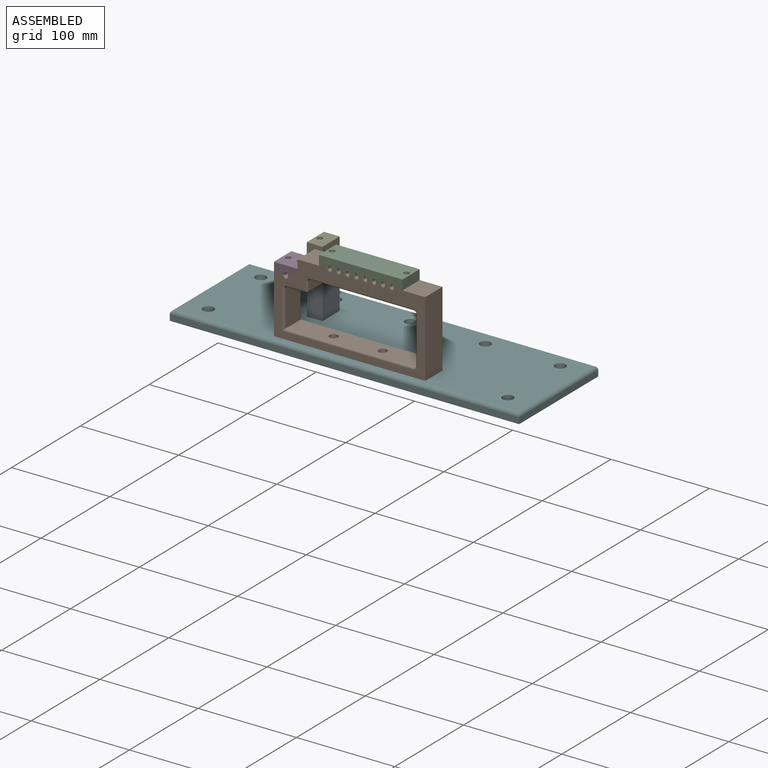
[diagram: assembled view]
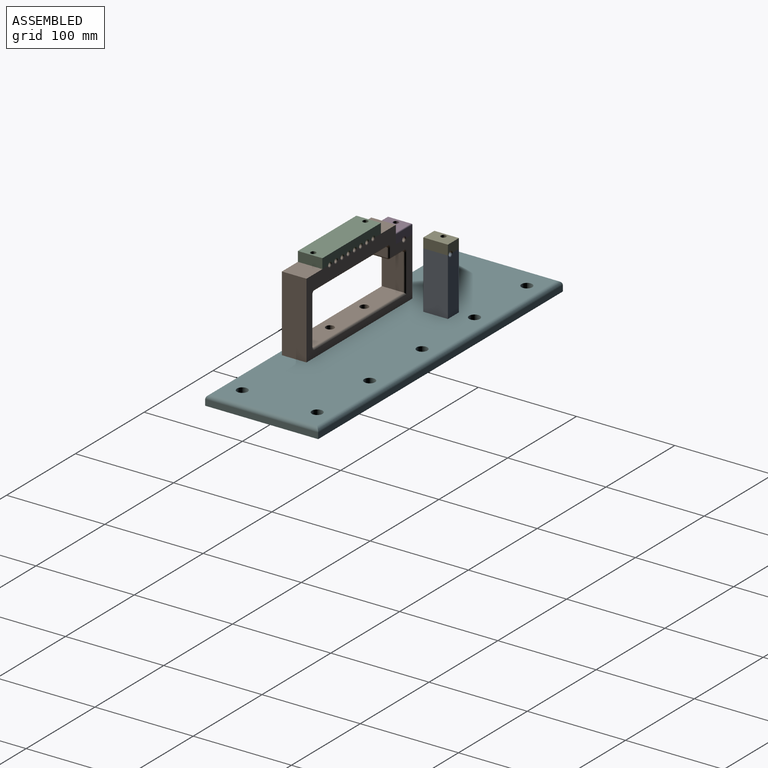
[diagram: assembled view, second angle]
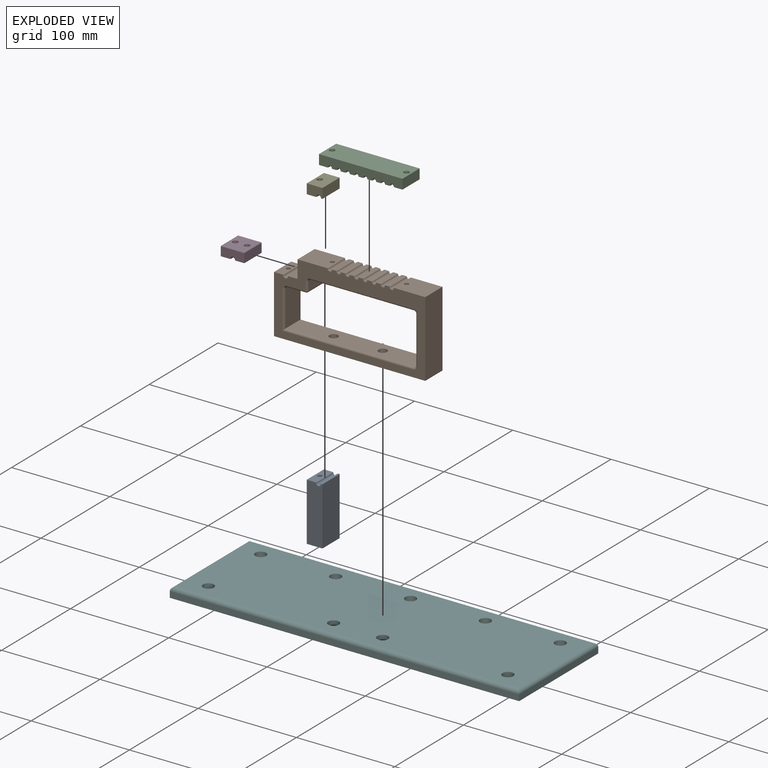
[diagram: exploded view]
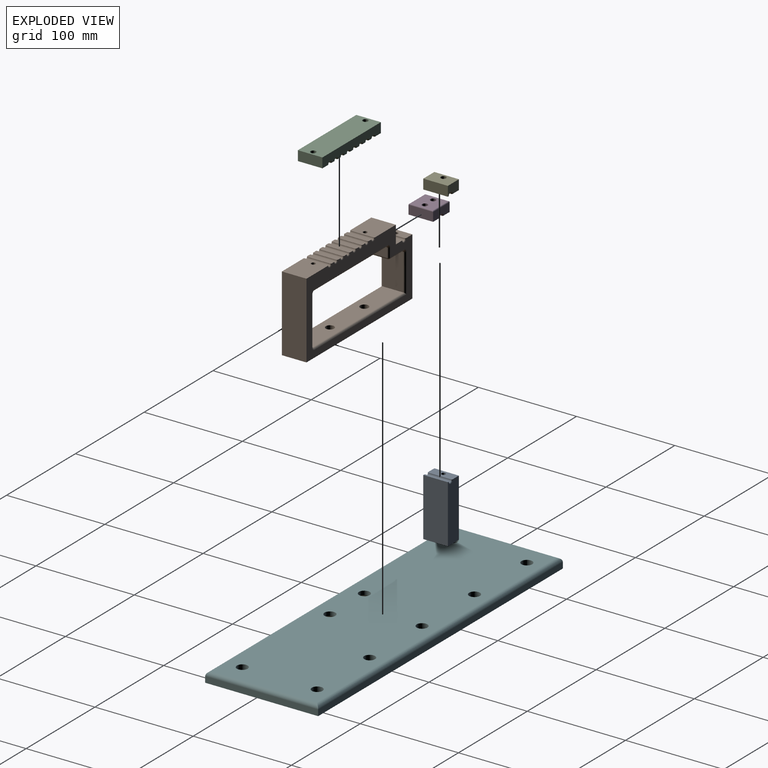
[diagram: exploded view, second angle]
ASSEMBLY  parts=6 mates=4
PART A: 14 faces, bbox 16.1x25x59 mm
  f0: plane 25x1.95mm, normal (0,0,1), area 48.3mm2, adj f1,f5,f6,f7,f8,f9
  f1: cylinder r=2.05mm len=23mm, axis (0,1,0), area 148.1mm2, adj f0,f2,f8,f9
  f2: plane 25x9.95mm, normal (0,0,1), area 234.5mm2, adj f1,f3,f6,f7,f8,f9,f11
  f3: plane 59x25mm, normal (-1,0,0), area 1475mm2, adj f2,f4,f6,f7
  f4: plane 25x16mm, normal (0,0,-1), area 343.3mm2, adj f3,f5,f6,f7,f13
  f5: plane 59x25mm, normal (1,0,0), area 1475mm2, adj f0,f4,f6,f7
  f6: plane 59x16mm, normal (0,-1,0), area 929.4mm2, adj f0,f2,f3,f4,f5,f9
  f7: plane 59x16mm, normal (0,1,0), area 929.4mm2, adj f0,f2,f3,f4,f5,f8
  f8: torus R=3.05mm, axis (0,-1,0), area 11.9mm2, adj f0,f1,f2,f7
  f9: torus R=3.05mm, axis (0,-1,0), area 11.9mm2, adj f0,f1,f2,f6
  f10: cone r=0mm half-angle=59deg, axis (0,0,1), area 16.2mm2, adj f11
  f11: cylinder r=2.1mm len=15mm, axis (0,0,1), area 197.9mm2, adj f2,f10
  f12: cone r=0mm half-angle=59deg, axis (0,0,-1), area 66.2mm2, adj f13
  f13: cylinder r=4.25mm len=17.1mm, axis (0,0,-1), area 456.6mm2, adj f4,f12
PART B: 86 faces, bbox 154x25x77 mm
  f0: plane 154x77mm, normal (0,-1,0), area 3935.1mm2, adj f2,f3,f4,f5,f6,f8,f10,f12
  f1: cylinder r=2.05mm len=23mm, axis (0,1,0), area 148.1mm2, adj f2,f30,f69,f78
  f2: plane 25x9.95mm, normal (0,0,1), area 234.5mm2, adj f0,f1,f3,f31,f69,f78,f81
  f3: plane 59x25mm, normal (-1,0,0), area 1475mm2, adj f0,f2,f4,f31
  f4: plane 154x25mm, normal (0,0,-1), area 3736.5mm2, adj f0,f3,f5,f31,f59,f60
  f5: plane 77x25mm, normal (1,0,0), area 1925mm2, adj f0,f4,f6,f31
  f6: plane 32.29x25mm, normal (0,0,1), area 792.8mm2, adj f0,f5,f7,f31,f68,f77,f85
  f7: cylinder r=1.75mm len=23mm, axis (0,1,0), area 126.4mm2, adj f6,f8,f68,f77
  f8: plane 25x5.5mm, normal (0,0,1), area 136.6mm2, adj f0,f7,f9,f31,f67,f68,f76,f77
  f9: cylinder r=1.75mm len=23mm, axis (0,1,0), area 126.4mm2, adj f8,f10,f67,f76
  f10: plane 25x5.5mm, normal (0,0,1), area 136.6mm2, adj f0,f9,f11,f31,f66,f67,f75,f76
  f11: cylinder r=1.75mm len=23mm, axis (0,1,0), area 126.4mm2, adj f10,f12,f66,f75
  f12: plane 25x5.5mm, normal (0,0,1), area 136.6mm2, adj f0,f11,f13,f31,f65,f66,f74,f75
  f13: cylinder r=1.75mm len=23mm, axis (0,1,0), area 126.4mm2, adj f12,f14,f65,f74
  f14: plane 25x5.5mm, normal (0,0,1), area 136.6mm2, adj f0,f13,f15,f31,f64,f65,f73,f74
  f15: cylinder r=1.75mm len=23mm, axis (0,1,0), area 126.4mm2, adj f14,f16,f64,f73
  f16: plane 25x5.5mm, normal (0,0,1), area 136.6mm2, adj f0,f15,f17,f31,f63,f64,f72,f73
  f17: cylinder r=1.75mm len=23mm, axis (0,1,0), area 126.4mm2, adj f16,f18,f63,f72
  f18: plane 25x5.5mm, normal (0,0,1), area 136.6mm2, adj f0,f17,f19,f31,f62,f63,f71,f72
  f19: cylinder r=1.75mm len=23mm, axis (0,1,0), area 126.4mm2, adj f18,f20,f62,f71
  f20: plane 25x5.5mm, normal (0,0,1), area 136.6mm2, adj f0,f19,f21,f31,f61,f62,f70,f71
  f21: cylinder r=1.75mm len=23mm, axis (0,1,0), area 126.4mm2, adj f20,f22,f61,f70
  f22: plane 31.22x25mm, normal (0,0,1), area 766.1mm2, adj f0,f21,f23,f31,f61,f70,f83
  f23: plane 25x18mm, normal (-1,0,0), area 450mm2, adj f0,f22,f30,f31
  f24: plane 37x21mm, normal (1,0,0), area 777mm2, adj f29,f42,f52,f53
  f25: plane 21x19.51mm, normal (0,0,-1), area 395.9mm2, adj f47,f52,f55,f58,f79
  f26: plane 21x9mm, normal (1,0,0), area 189mm2, adj f45,f46,f54,f55
  f27: plane 106x21mm, normal (0,0,-1), area 2224.3mm2, adj f35,f36,f44,f45,f82,f84
  f28: plane 48x21mm, normal (-1,0,0), area 1008mm2, adj f32,f35,f38,f39
  f29: plane 131.51x21mm, normal (0,0,1), area 2648.2mm2, adj f24,f37,f38,f49,f59,f60
  f30: plane 25x9.95mm, normal (0,0,1), area 234.5mm2, adj f0,f1,f23,f31,f69,f78,f79
  f31: plane 154x77mm, normal (0,1,0), area 3935.1mm2, adj f2,f3,f4,f5,f6,f8,f10,f12
  f32: cylinder r=2mm len=48mm, axis (0,0,-1), area 150.8mm2, adj f28,f31,f33,f34
  f33: torus R=4mm, axis (0,-1,0), area 13.5mm2, adj f31,f32,f35,f36
  f34: torus R=4mm, axis (0,-1,0), area 13.5mm2, adj f31,f32,f37,f38
  f35: cylinder r=2mm len=21mm, axis (0,1,0), area 66mm2, adj f27,f28,f33,f40
  f36: cylinder r=2mm len=106mm, axis (1,0,0), area 333mm2, adj f27,f31,f33,f41
  f37: cylinder r=2mm len=133.51mm, axis (-1,0,0), area 415.4mm2, adj f29,f31,f34,f42
  f38: cylinder r=2mm len=21mm, axis (0,-1,0), area 66mm2, adj f28,f29,f34,f43
  f39: cylinder r=2mm len=48mm, axis (0,0,1), area 150.8mm2, adj f0,f28,f40,f43
  f40: torus R=4mm, axis (0,-1,0), area 13.5mm2, adj f0,f35,f39,f44
  f41: torus R=4mm, axis (0,-1,0), area 13.5mm2, adj f31,f36,f45,f46
  f42: cylinder r=2mm len=39mm, axis (0,0,1), area 118.5mm2, adj f24,f31,f37,f48
  f43: torus R=4mm, axis (0,-1,0), area 13.5mm2, adj f0,f38,f39,f49
  f44: cylinder r=2mm len=106mm, axis (-1,0,0), area 333mm2, adj f0,f27,f40,f50
  f45: cylinder r=2mm len=21mm, axis (0,1,0), area 66mm2, adj f26,f27,f41,f50
  f46: cylinder r=2mm len=9mm, axis (0,0,1), area 28.3mm2, adj f26,f31,f41,f51
  f47: cylinder r=2mm len=19.51mm, axis (1,0,0), area 61.3mm2, adj f25,f31,f48,f51
  f48: torus R=4mm, axis (0,-1,0), area 13.5mm2, adj f31,f42,f47,f52
  f49: cylinder r=2mm len=133.51mm, axis (1,0,0), area 415.4mm2, adj f0,f29,f43,f53
  f50: torus R=4mm, axis (0,-1,0), area 13.5mm2, adj f0,f44,f45,f54
  f51: sphere r=2mm, area 6.3mm2, adj f46,f47,f55
  f52: cylinder r=2mm len=21mm, axis (0,1,0), area 66mm2, adj f24,f25,f48,f56
  f53: cylinder r=2mm len=39mm, axis (0,0,-1), area 118.5mm2, adj f0,f24,f49,f56
  f54: cylinder r=2mm len=9mm, axis (0,0,-1), area 28.3mm2, adj f0,f26,f50,f57
  f55: cylinder r=2mm len=21mm, axis (0,-1,0), area 66mm2, adj f25,f26,f51,f57
  f56: torus R=4mm, axis (0,-1,0), area 13.5mm2, adj f0,f52,f53,f58
  f57: sphere r=2mm, area 6.3mm2, adj f54,f55,f58
  f58: cylinder r=2mm len=19.51mm, axis (-1,0,0), area 61.3mm2, adj f0,f25,f56,f57
  f59: cylinder r=4.25mm len=9.05mm, axis (0,0,-1), area 241.7mm2, adj f4,f29
  f60: cylinder r=4.25mm len=9.05mm, axis (0,0,-1), area 241.7mm2, adj f4,f29
  f61: torus R=2.75mm, axis (0,-1,0), area 10.4mm2, adj f20,f21,f22,f31
  f62: torus R=2.75mm, axis (0,-1,0), area 10.4mm2, adj f18,f19,f20,f31
  f63: torus R=2.75mm, axis (0,-1,0), area 10.4mm2, adj f16,f17,f18,f31
  f64: torus R=2.75mm, axis (0,-1,0), area 10.4mm2, adj f14,f15,f16,f31
  f65: torus R=2.75mm, axis (0,-1,0), area 10.4mm2, adj f12,f13,f14,f31
  f66: torus R=2.75mm, axis (0,-1,0), area 10.4mm2, adj f10,f11,f12,f31
  f67: torus R=2.75mm, axis (0,-1,0), area 10.4mm2, adj f8,f9,f10,f31
  f68: torus R=2.75mm, axis (0,-1,0), area 10.4mm2, adj f6,f7,f8,f31
  f69: torus R=3.05mm, axis (0,-1,0), area 11.9mm2, adj f1,f2,f30,f31
  f70: torus R=2.75mm, axis (0,-1,0), area 10.4mm2, adj f0,f20,f21,f22
  f71: torus R=2.75mm, axis (0,-1,0), area 10.4mm2, adj f0,f18,f19,f20
  f72: torus R=2.75mm, axis (0,-1,0), area 10.4mm2, adj f0,f16,f17,f18
  f73: torus R=2.75mm, axis (0,-1,0), area 10.4mm2, adj f0,f14,f15,f16
  f74: torus R=2.75mm, axis (0,-1,0), area 10.4mm2, adj f0,f12,f13,f14
  f75: torus R=2.75mm, axis (0,-1,0), area 10.4mm2, adj f0,f10,f11,f12
  f76: torus R=2.75mm, axis (0,-1,0), area 10.4mm2, adj f0,f8,f9,f10
  f77: torus R=2.75mm, axis (0,-1,0), area 10.4mm2, adj f0,f6,f7,f8
  f78: torus R=3.05mm, axis (0,-1,0), area 11.9mm2, adj f0,f1,f2,f30
  f79: cylinder r=2.1mm len=10.95mm, axis (0,0,1), area 144.5mm2, adj f25,f30
  f80: cone r=0mm half-angle=59deg, axis (0,0,1), area 16.2mm2, adj f81
  f81: cylinder r=2.1mm len=15mm, axis (0,0,1), area 197.9mm2, adj f2,f80
  f82: cone r=0mm half-angle=59deg, axis (0,0,1), area 15.2mm2, adj f27,f83
  f83: cylinder r=2.1mm len=15mm, axis (0,0,1), area 197.9mm2, adj f22,f82
  f84: cone r=0mm half-angle=59deg, axis (0,0,1), area 15.2mm2, adj f27,f85
  f85: cylinder r=2.1mm len=15mm, axis (0,0,1), area 197.9mm2, adj f6,f84
PART C: 40 faces, bbox 85x25x10 mm
  f0: cylinder r=1.75mm len=23mm, axis (0,1,0), area 126.4mm2, adj f1,f19,f29,f37
  f1: plane 25x5.5mm, normal (0,0,1), area 136.6mm2, adj f0,f2,f20,f21,f28,f29,f36,f37
  f2: cylinder r=1.75mm len=23mm, axis (0,1,0), area 126.4mm2, adj f1,f3,f28,f36
  f3: plane 25x5.5mm, normal (0,0,1), area 136.6mm2, adj f2,f4,f20,f21,f27,f28,f35,f36
  f4: cylinder r=1.75mm len=23mm, axis (0,1,0), area 126.4mm2, adj f3,f5,f27,f35
  f5: plane 25x5.5mm, normal (0,0,1), area 136.6mm2, adj f4,f6,f20,f21,f26,f27,f34,f35
  f6: cylinder r=1.75mm len=23mm, axis (0,1,0), area 126.4mm2, adj f5,f7,f26,f34
  f7: plane 25x5.5mm, normal (0,0,1), area 136.6mm2, adj f6,f8,f20,f21,f25,f26,f33,f34
  f8: cylinder r=1.75mm len=23mm, axis (0,1,0), area 126.4mm2, adj f7,f9,f25,f33
  f9: plane 25x5.5mm, normal (0,0,1), area 136.6mm2, adj f8,f10,f20,f21,f24,f25,f32,f33
  f10: cylinder r=1.75mm len=23mm, axis (0,1,0), area 126.4mm2, adj f9,f11,f24,f32
  f11: plane 25x5.5mm, normal (0,0,1), area 136.6mm2, adj f10,f12,f20,f21,f23,f24,f31,f32
  f12: cylinder r=1.75mm len=23mm, axis (0,1,0), area 126.4mm2, adj f11,f13,f23,f31
  f13: plane 25x5.5mm, normal (0,0,1), area 136.6mm2, adj f12,f14,f20,f21,f22,f23,f30,f31
  f14: cylinder r=1.75mm len=23mm, axis (0,1,0), area 126.4mm2, adj f13,f15,f22,f30
  f15: plane 25x9.25mm, normal (0,0,1), area 207.1mm2, adj f14,f16,f20,f21,f22,f30,f39
  f16: plane 25x10mm, normal (-1,0,0), area 250mm2, adj f15,f17,f20,f21
  f17: plane 85x25mm, normal (0,0,-1), area 2077.5mm2, adj f16,f18,f20,f21,f38,f39
  f18: plane 25x10mm, normal (1,0,0), area 250mm2, adj f17,f19,f20,f21
  f19: plane 25x9.25mm, normal (0,0,1), area 207.1mm2, adj f0,f18,f20,f21,f29,f37,f38
  f20: plane 85x10mm, normal (0,-1,0), area 755mm2, adj f1,f3,f5,f7,f9,f11,f13,f15
  f21: plane 85x10mm, normal (0,1,0), area 755mm2, adj f1,f3,f5,f7,f9,f11,f13,f15
  f22: torus R=2.75mm, axis (0,-1,0), area 10.4mm2, adj f13,f14,f15,f21
  f23: torus R=2.75mm, axis (0,-1,0), area 10.4mm2, adj f11,f12,f13,f21
  f24: torus R=2.75mm, axis (0,-1,0), area 10.4mm2, adj f9,f10,f11,f21
  f25: torus R=2.75mm, axis (0,-1,0), area 10.4mm2, adj f7,f8,f9,f21
  f26: torus R=2.75mm, axis (0,-1,0), area 10.4mm2, adj f5,f6,f7,f21
  f27: torus R=2.75mm, axis (0,-1,0), area 10.4mm2, adj f3,f4,f5,f21
  f28: torus R=2.75mm, axis (0,-1,0), area 10.4mm2, adj f1,f2,f3,f21
  f29: torus R=2.75mm, axis (0,-1,0), area 10.4mm2, adj f0,f1,f19,f21
  f30: torus R=2.75mm, axis (0,-1,0), area 10.4mm2, adj f13,f14,f15,f20
  f31: torus R=2.75mm, axis (0,-1,0), area 10.4mm2, adj f11,f12,f13,f20
  f32: torus R=2.75mm, axis (0,-1,0), area 10.4mm2, adj f9,f10,f11,f20
  f33: torus R=2.75mm, axis (0,-1,0), area 10.4mm2, adj f7,f8,f9,f20
  f34: torus R=2.75mm, axis (0,-1,0), area 10.4mm2, adj f5,f6,f7,f20
  f35: torus R=2.75mm, axis (0,-1,0), area 10.4mm2, adj f3,f4,f5,f20
  f36: torus R=2.75mm, axis (0,-1,0), area 10.4mm2, adj f1,f2,f3,f20
  f37: torus R=2.75mm, axis (0,-1,0), area 10.4mm2, adj f0,f1,f19,f20
  f38: cylinder r=2.75mm len=10mm, axis (0,0,1), area 172.8mm2, adj f17,f19
  f39: cylinder r=2.75mm len=10mm, axis (0,0,1), area 172.8mm2, adj f15,f17
PART D: 16 faces, bbox 24x25x10 mm
  f0: plane 25x9.95mm, normal (0,0,-1), area 224.6mm2, adj f1,f5,f6,f7,f12,f13,f15
  f1: cylinder r=2.05mm len=23mm, axis (0,1,0), area 148.1mm2, adj f0,f2,f12,f13
  f2: plane 25x9.95mm, normal (0,0,-1), area 224.6mm2, adj f1,f3,f6,f7,f12,f13,f14
  f3: plane 25x9mm, normal (1,0,0), area 225mm2, adj f2,f6,f7,f11
  f4: plane 23x22mm, normal (0,0,1), area 458.5mm2, adj f8,f9,f10,f11,f14,f15
  f5: plane 25x9mm, normal (-1,0,0), area 225mm2, adj f0,f6,f7,f8
  f6: plane 24x9mm, normal (0,-1,0), area 201.4mm2, adj f0,f2,f3,f5,f9,f13
  f7: plane 24x9mm, normal (0,1,0), area 201.4mm2, adj f0,f2,f3,f5,f10,f12
  f8: cylinder r=1mm len=25mm, axis (0,-1,0), area 38.1mm2, adj f4,f5,f9,f10
  f9: cylinder r=1mm len=24mm, axis (1,0,0), area 36.6mm2, adj f4,f6,f8,f11
  f10: cylinder r=1mm len=24mm, axis (-1,0,0), area 36.6mm2, adj f4,f7,f8,f11
  f11: cylinder r=1mm len=25mm, axis (0,1,0), area 38.1mm2, adj f3,f4,f9,f10
  f12: torus R=3.05mm, axis (0,-1,0), area 11.9mm2, adj f0,f1,f2,f7
  f13: torus R=3.05mm, axis (0,-1,0), area 11.9mm2, adj f0,f1,f2,f6
  f14: cylinder r=2.75mm len=10mm, axis (0,0,1), area 172.8mm2, adj f2,f4
  f15: cylinder r=2.75mm len=10mm, axis (0,0,1), area 172.8mm2, adj f0,f4
PART E: 11 faces, bbox 16.1x25x10 mm
  f0: cylinder r=2.05mm len=23mm, axis (0,1,0), area 148.1mm2, adj f1,f5,f8,f9
  f1: plane 25x9.95mm, normal (0,0,-1), area 224.6mm2, adj f0,f2,f6,f7,f8,f9,f10
  f2: plane 25x10mm, normal (1,0,0), area 250mm2, adj f1,f3,f6,f7
  f3: plane 25x16mm, normal (0,0,1), area 376.2mm2, adj f2,f4,f6,f7,f10
  f4: plane 25x10mm, normal (-1,0,0), area 250mm2, adj f3,f5,f6,f7
  f5: plane 25x1.95mm, normal (0,0,-1), area 48.3mm2, adj f0,f4,f6,f7,f8,f9
  f6: plane 16x10mm, normal (0,-1,0), area 145.4mm2, adj f1,f2,f3,f4,f5,f9
  f7: plane 16x10mm, normal (0,1,0), area 145.4mm2, adj f1,f2,f3,f4,f5,f8
  f8: torus R=3.05mm, axis (0,-1,0), area 11.9mm2, adj f0,f1,f5,f7
  f9: torus R=3.05mm, axis (0,-1,0), area 11.9mm2, adj f0,f1,f5,f6
  f10: cylinder r=2.75mm len=10mm, axis (0,0,-1), area 172.8mm2, adj f1,f3
PART F: 21 faces, bbox 355.6x115x10 mm
  f0: plane 115x6mm, normal (1,0,0), area 690mm2, adj f1,f3,f5,f13
  f1: plane 355.6x6mm, normal (0,1,0), area 2133.6mm2, adj f0,f2,f5,f14
  f2: plane 115x6mm, normal (-1,0,0), area 690mm2, adj f1,f3,f5,f16
  f3: plane 355.6x6mm, normal (0,-1,0), area 2133.6mm2, adj f0,f2,f5,f15
  f4: plane 347.6x107mm, normal (0,0,1), area 36337.9mm2, adj f6,f7,f8,f9,f10,f11,f12,f13
  f5: plane 355.6x115mm, normal (0,0,-1), area 39417.2mm2, adj f0,f1,f2,f3,f6,f7,f8,f9
  f6: cylinder r=5.5mm len=11mm, axis (0,0,-1), area 345.6mm2, adj f4,f5
  f7: cylinder r=5.5mm len=11mm, axis (0,0,-1), area 345.6mm2, adj f4,f5
  f8: cylinder r=5.5mm len=11mm, axis (0,0,-1), area 345.6mm2, adj f4,f5
  f9: cylinder r=5.5mm len=11mm, axis (0,0,-1), area 345.6mm2, adj f4,f5
  f10: cylinder r=5.5mm len=11mm, axis (0,0,-1), area 345.6mm2, adj f4,f5
  f11: cylinder r=5.5mm len=11mm, axis (0,0,-1), area 345.6mm2, adj f4,f5
  f12: cylinder r=5.5mm len=11mm, axis (0,0,-1), area 345.6mm2, adj f4,f5
  f13: cylinder r=4mm len=115mm, axis (0,-1,0), area 704.3mm2, adj f0,f4,f14,f15
  f14: cylinder r=4mm len=355.6mm, axis (1,0,0), area 2216mm2, adj f1,f4,f13,f16
  f15: cylinder r=4mm len=355.6mm, axis (-1,0,0), area 2216mm2, adj f3,f4,f13,f16
  f16: cylinder r=4mm len=115mm, axis (0,1,0), area 704.3mm2, adj f2,f4,f14,f15
  f17: cylinder r=5.5mm len=11mm, axis (0,0,-1), area 142.9mm2, adj f4,f18
  f18: cone r=5.5mm half-angle=45deg, axis (0,0,-1), area 439.5mm2, adj f5,f17
  f19: cylinder r=5.5mm len=11mm, axis (0,0,-1), area 142.9mm2, adj f4,f20
  f20: cone r=5.5mm half-angle=45deg, axis (0,0,-1), area 439.5mm2, adj f5,f19
PLACE A t=(-189.09,-65.14,3.94)mm
PLACE B t=(-174.64,-112.55,-33.23)mm
PLACE C rot(axis=(0,1,0),180deg) t=(-148.33,-112.55,48.77)mm
PLACE D t=(-224.64,-112.55,25.77)mm
PLACE E rot(axis=(0,0,-1),180deg) t=(-224.45,-90.14,25.13)mm
PLACE F t=(-159.64,-87.55,-43.23)mm
MATE fastened D.f15 <-> B.f80  axis (0,0,1) through (-230.64,-125.05,25.77)mm
MATE fastened A.f10 <-> E.f10  axis (0,0,1) through (-231.98,-77.64,25.13)mm
MATE fastened B.f59 <-> F.f17  axis (0,0,-1) through (-134.64,-125.05,-33.23)mm
MATE fastened C.f39 <-> B.f84  axis (0,0,-1) through (-110.46,-125.05,43.77)mm
